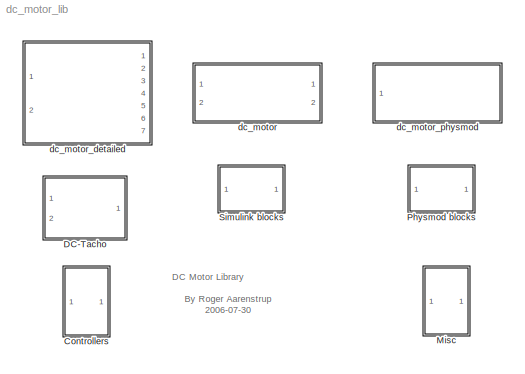
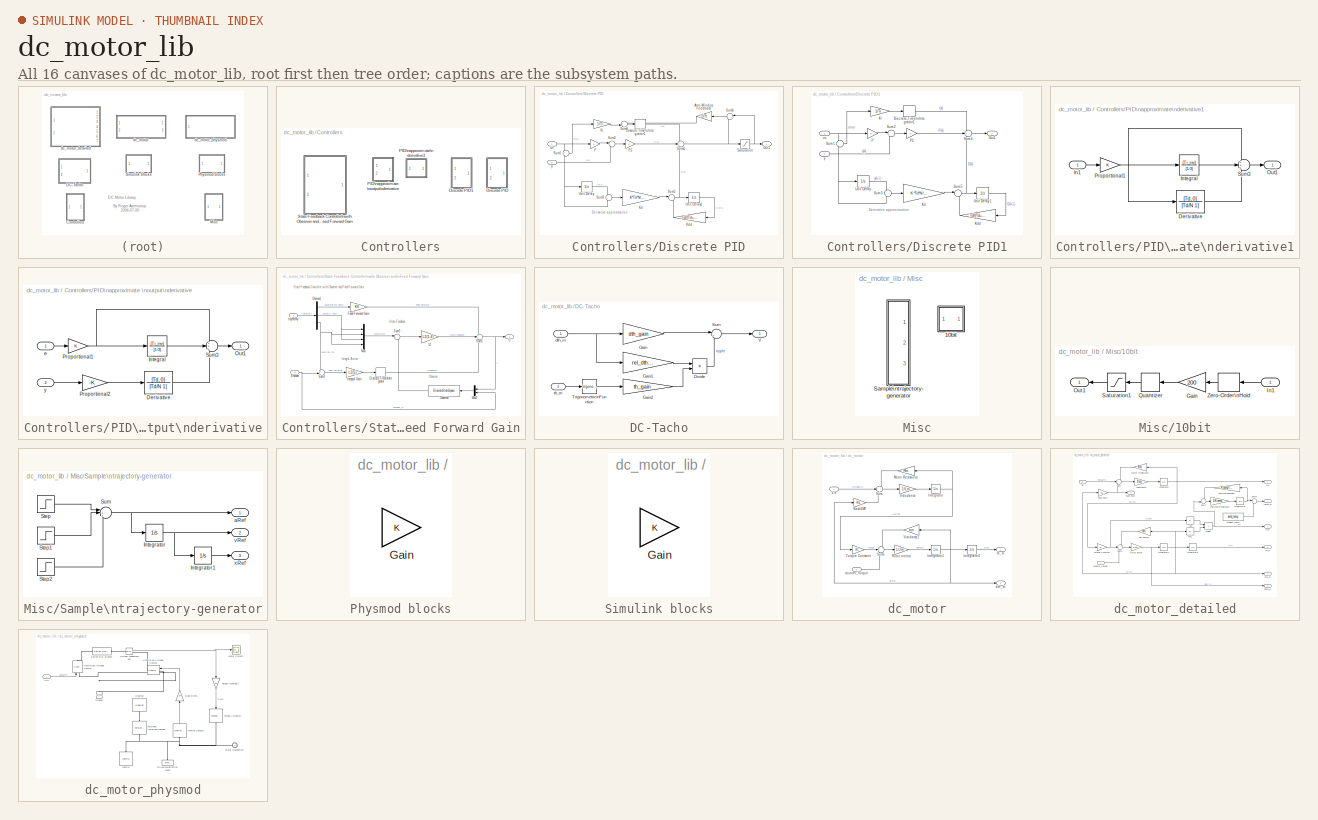
[diagram: thumbnail index - all 16 canvases of the model, root first then tree order]
MODEL dc_motor_lib
KIND library
BLOCK [SubSystem] Controllers
  Ports = []
  RequestExecContextInheritance = off
  SID = 1
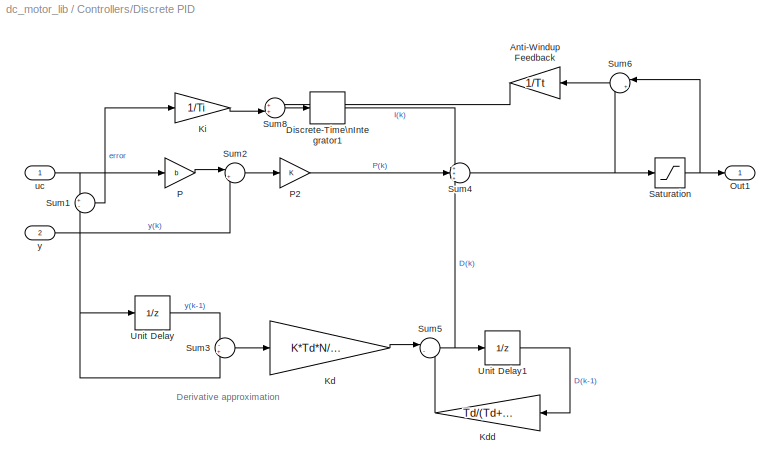
BLOCK [SubSystem] Controllers/Discrete PID
  Ports = [2, 1]
  RequestExecContextInheritance = off
  SID = 2
BLOCK [Gain] Controllers/Discrete PID/Anti-Windup Feedback
  Gain = 1/Tt
  SID = 5
  SampleTime = Ts
BLOCK [DiscreteIntegrator] Controllers/Discrete PID/Discrete-Time\nIntegrator1
  ICPrevOutput = DiscIntNeverNeededParam
  ICPrevScaledInput = DiscIntNeverNeededParam
  Ports = [1, 1]
  SID = 6
  SampleTime = Ts
  gainval = K
BLOCK [Gain] Controllers/Discrete PID/Kd
  Gain = K*Td*N/(Td+N*Ts)
  SID = 7
  SampleTime = Ts
BLOCK [Gain] Controllers/Discrete PID/Kdd
  Gain = Td/(Td+N*Ts)
  SID = 8
  SampleTime = Ts
BLOCK [Gain] Controllers/Discrete PID/Ki
  Gain = 1/Ti
  SID = 9
  SampleTime = Ts
BLOCK [Outport] Controllers/Discrete PID/Out1
  SID = 22
BLOCK [Gain] Controllers/Discrete PID/P
  Gain = b
  SID = 10
  SampleTime = Ts
BLOCK [Gain] Controllers/Discrete PID/P2
  Gain = K
  SID = 11
  SampleTime = Ts
BLOCK [Saturate] Controllers/Discrete PID/Saturation
  LowerLimit = Umin
  SID = 12
  SampleTime = Ts
  UpperLimit = Umax
BLOCK [Sum] Controllers/Discrete PID/Sum1
  Inputs = +-
  Ports = [2, 1]
  SID = 13
BLOCK [Sum] Controllers/Discrete PID/Sum2
  Inputs = |+-
  Ports = [2, 1]
  SID = 14
BLOCK [Sum] Controllers/Discrete PID/Sum3
  Inputs = -+
  Ports = [2, 1]
  SID = 15
BLOCK [Sum] Controllers/Discrete PID/Sum4
  Inputs = +++
  Ports = [3, 1]
  SID = 16
BLOCK [Sum] Controllers/Discrete PID/Sum5
  Inputs = |-+
  Ports = [2, 1]
  SID = 17
BLOCK [Sum] Controllers/Discrete PID/Sum6
  Inputs = |+-
  Ports = [2, 1]
  SID = 18
BLOCK [Sum] Controllers/Discrete PID/Sum8
  Inputs = ++|
  Ports = [2, 1]
  SID = 19
BLOCK [UnitDelay] Controllers/Discrete PID/Unit Delay
  SID = 20
  SampleTime = Ts
BLOCK [UnitDelay] Controllers/Discrete PID/Unit Delay1
  SID = 21
  SampleTime = Ts
BLOCK [Inport] Controllers/Discrete PID/uc
  SID = 3
BLOCK [Inport] Controllers/Discrete PID/y
  Port = 2
  SID = 4
BLOCK [SubSystem] Controllers/Discrete PID1
  Ports = [2, 1]
  RequestExecContextInheritance = off
  SID = 24
BLOCK [DiscreteIntegrator] Controllers/Discrete PID1/Discrete-Time\nIntegrator1
  ICPrevOutput = DiscIntNeverNeededParam
  ICPrevScaledInput = DiscIntNeverNeededParam
  Ports = [1, 1]
  SID = 27
  SampleTime = Ts
  gainval = K
BLOCK [Gain] Controllers/Discrete PID1/Kd
  Gain = K*Td*N/(Td+N*Ts)
  SID = 28
BLOCK [Gain] Controllers/Discrete PID1/Kdd
  Gain = Td/(Td+N*Ts)
  SID = 29
BLOCK [Gain] Controllers/Discrete PID1/Ki
  Gain = 1/Ti
  SID = 30
BLOCK [Outport] Controllers/Discrete PID1/Out1
  SID = 40
BLOCK [Gain] Controllers/Discrete PID1/P
  Gain = b
  SID = 31
BLOCK [Gain] Controllers/Discrete PID1/P2
  Gain = K
  SID = 32
BLOCK [Sum] Controllers/Discrete PID1/Sum1
  Inputs = +-
  Ports = [2, 1]
  SID = 33
BLOCK [Sum] Controllers/Discrete PID1/Sum2
  Inputs = |+-
  Ports = [2, 1]
  SID = 34
BLOCK [Sum] Controllers/Discrete PID1/Sum3
  Inputs = -+
  Ports = [2, 1]
  SID = 35
BLOCK [Sum] Controllers/Discrete PID1/Sum4
  Inputs = +++
  Ports = [3, 1]
  SID = 36
BLOCK [Sum] Controllers/Discrete PID1/Sum5
  Inputs = |-+
  Ports = [2, 1]
  SID = 37
BLOCK [UnitDelay] Controllers/Discrete PID1/Unit Delay
  SID = 38
  SampleTime = Ts
BLOCK [UnitDelay] Controllers/Discrete PID1/Unit Delay1
  SID = 39
  SampleTime = Ts
BLOCK [Inport] Controllers/Discrete PID1/uc
  SID = 25
BLOCK [Inport] Controllers/Discrete PID1/y
  Port = 2
  SID = 26
BLOCK [SubSystem] Controllers/PID\napproximate \noutput\nderivative
  Ports = [2, 1]
  RequestExecContextInheritance = off
  SID = 49
BLOCK [TransferFcn] Controllers/PID\napproximate \noutput\nderivative/Derivative
  Denominator = [Td/N 1]
  Numerator = [Td, 0]
  SID = 52
BLOCK [TransferFcn] Controllers/PID\napproximate \noutput\nderivative/Integral
  Denominator = [1 0]
  Numerator = [Ti_inv]
  SID = 53
BLOCK [Outport] Controllers/PID\napproximate \noutput\nderivative/Out1
  SID = 57
BLOCK [Gain] Controllers/PID\napproximate \noutput\nderivative/Proportional1
  Gain = K
  OutDataTypeStr = Inherit: Same as input
  ParamDataTypeStr = Inherit: Same as input
  SID = 54
  SaturateOnIntegerOverflow = on
BLOCK [Gain] Controllers/PID\napproximate \noutput\nderivative/Proportional2
  Gain = -K
  OutDataTypeStr = Inherit: Same as input
  ParamDataTypeStr = Inherit: Same as input
  SID = 55
  SaturateOnIntegerOverflow = on
BLOCK [Sum] Controllers/PID\napproximate \noutput\nderivative/Sum3
  Inputs = +++
  Ports = [3, 1]
  SID = 56
BLOCK [Inport] Controllers/PID\napproximate \noutput\nderivative/e
  SID = 50
BLOCK [Inport] Controllers/PID\napproximate \noutput\nderivative/y
  Port = 2
  SID = 51
BLOCK [SubSystem] Controllers/PID\napproximate\nderivative1
  Ports = [1, 1]
  RequestExecContextInheritance = off
  SID = 42
BLOCK [TransferFcn] Controllers/PID\napproximate\nderivative1/Derivative
  Denominator = [Td/N 1]
  Numerator = [Td, 0]
  SID = 44
BLOCK [Inport] Controllers/PID\napproximate\nderivative1/In1
  SID = 43
BLOCK [TransferFcn] Controllers/PID\napproximate\nderivative1/Integral
  Denominator = [1 0]
  Numerator = [Ti_inv]
  SID = 45
BLOCK [Outport] Controllers/PID\napproximate\nderivative1/Out1
  SID = 48
BLOCK [Gain] Controllers/PID\napproximate\nderivative1/Proportional1
  Gain = K
  OutDataTypeStr = Inherit: Same as input
  ParamDataTypeStr = Inherit: Same as input
  SID = 46
  SaturateOnIntegerOverflow = on
BLOCK [Sum] Controllers/PID\napproximate\nderivative1/Sum3
  Inputs = +++
  Ports = [3, 1]
  SID = 47
BLOCK [SubSystem] Controllers/State Feedback Controller\nwith Observer and\nFeed Forward Gain
  Ports = [2, 1]
  RequestExecContextInheritance = off
  SID = 58
BLOCK [Demux] Controllers/State Feedback Controller\nwith Observer and\nFeed Forward Gain/Demux1
  Outputs = 3
  Ports = [1, 3]
  SID = 61
BLOCK [DiscreteIntegrator] Controllers/State Feedback Controller\nwith Observer and\nFeed Forward Gain/Discrete-Time\nIntegrator
  ICPrevOutput = DiscIntNeverNeededParam
  ICPrevScaledInput = DiscIntNeverNeededParam
  Ports = [1, 1]
  SID = 62
  SampleTime = Ts
  gainval = 1
BLOCK [Inport] Controllers/State Feedback Controller\nwith Observer and\nFeed Forward Gain/Encoder
  Port = 2
  SID = 60
BLOCK [Gain] Controllers/State Feedback Controller\nwith Observer and\nFeed Forward Gain/Feed Forward Gain
  Gain = Kff
  SID = 63
  SampleTime = Ts
BLOCK [Gain] Controllers/State Feedback Controller\nwith Observer and\nFeed Forward Gain/Integral Gain
  Gain = L2(5)
  SID = 64
  SampleTime = Ts
BLOCK [Gain] Controllers/State Feedback Controller\nwith Observer and\nFeed Forward Gain/L2
  Gain = L2(1:4)
  Multiplication = Matrix(K*u) (u vector)
  SID = 65
  SampleTime = Ts
BLOCK [Mux] Controllers/State Feedback Controller\nwith Observer and\nFeed Forward Gain/Mux
  DisplayOption = bar
  Ports = [4, 1]
  SID = 66
BLOCK [Mux] Controllers/State Feedback Controller\nwith Observer and\nFeed Forward Gain/Mux2
  DisplayOption = bar
  Inputs = 2
  Ports = [2, 1]
  SID = 67
BLOCK [DiscreteStateSpace] Controllers/State Feedback Controller\nwith Observer and\nFeed Forward Gain/Observer
  A = Aobs
  B = Bobs
  C = Cobs
  D = Dobs
  SID = 68
  SampleTime = Ts
BLOCK [Sum] Controllers/State Feedback Controller\nwith Observer and\nFeed Forward Gain/Sum1
  Inputs = +++
  Ports = [3, 1]
  SID = 69
BLOCK [Sum] Controllers/State Feedback Controller\nwith Observer and\nFeed Forward Gain/Sum2
  Inputs = +-|
  Ports = [2, 1]
  SID = 70
BLOCK [Sum] Controllers/State Feedback Controller\nwith Observer and\nFeed Forward Gain/Sum3
  Inputs = |+-
  Ports = [2, 1]
  SID = 71
BLOCK [Outport] Controllers/State Feedback Controller\nwith Observer and\nFeed Forward Gain/U
  SID = 72
BLOCK [Inport] Controllers/State Feedback Controller\nwith Observer and\nFeed Forward Gain/trajectory
  SID = 59
BLOCK [SubSystem] DC-Tacho
  Ports = [2, 1]
  RequestExecContextInheritance = off
  SID = 77
BLOCK [Product] DC-Tacho/Divide
  Inputs = **
  Ports = [2, 1]
  SID = 80
BLOCK [Gain] DC-Tacho/Gain
  Gain = dth_gain
  SID = 81
BLOCK [Gain] DC-Tacho/Gain1
  Gain = rel_dth_gain
  SID = 82
BLOCK [Gain] DC-Tacho/Gain2
  Gain = th_gain
  SID = 83
BLOCK [Sum] DC-Tacho/Sum
  Inputs = |++
  Ports = [2, 1]
  SID = 84
BLOCK [Trigonometry] DC-Tacho/Trigonometric\nFunction
  Ports = [1, 1]
  SID = 85
BLOCK [Outport] DC-Tacho/V
  SID = 86
BLOCK [Inport] DC-Tacho/dth_m
  SID = 78
BLOCK [Inport] DC-Tacho/th_m
  Port = 2
  SID = 79
BLOCK [SubSystem] Misc
  Ports = []
  RequestExecContextInheritance = off
  SID = 87
BLOCK [SubSystem] Misc/10bit
  Ports = [1, 1]
  RequestExecContextInheritance = off
  SID = 88
BLOCK [Gain] Misc/10bit/Gain
  Gain = 200
  SID = 90
BLOCK [Inport] Misc/10bit/In1
  SID = 89
BLOCK [Outport] Misc/10bit/Out1
  SID = 94
BLOCK [Quantizer] Misc/10bit/Quantizer
  QuantizationInterval = 1
  SID = 91
  SampleTime = Ts
BLOCK [Saturate] Misc/10bit/Saturation1
  LowerLimit = -512
  SID = 92
  SampleTime = Ts
  UpperLimit = 512
BLOCK [ZeroOrderHold] Misc/10bit/Zero-Order\nHold
  SID = 93
  SampleTime = Ts
BLOCK [SubSystem] Misc/Sample\ntrajectory-generator
  Ports = [0, 3]
  RequestExecContextInheritance = off
  SID = 95
BLOCK [Integrator] Misc/Sample\ntrajectory-generator/Integrator
  Ports = [1, 1]
  SID = 96
BLOCK [Integrator] Misc/Sample\ntrajectory-generator/Integrator1
  Ports = [1, 1]
  SID = 97
BLOCK [Step] Misc/Sample\ntrajectory-generator/Step
  After = aMax
  SID = 98
  SampleTime = 0
  Time = 0
BLOCK [Step] Misc/Sample\ntrajectory-generator/Step1
  After = -2*aMax
  SID = 99
  SampleTime = 0
  Time = tMove/2
BLOCK [Step] Misc/Sample\ntrajectory-generator/Step2
  After = aMax
  SID = 100
  SampleTime = 0
  Time = 2*tMove/2
BLOCK [Sum] Misc/Sample\ntrajectory-generator/Sum
  InputSameDT = on
  Inputs = |+++
  OutDataTypeStr = Inherit: Same as first input
  Ports = [3, 1]
  SID = 101
  SaturateOnIntegerOverflow = on
BLOCK [Outport] Misc/Sample\ntrajectory-generator/aRef
  SID = 102
BLOCK [Outport] Misc/Sample\ntrajectory-generator/vRef
  Port = 2
  SID = 103
BLOCK [Outport] Misc/Sample\ntrajectory-generator/xRef
  Port = 3
  SID = 104
BLOCK [SubSystem] Physmod blocks
  OpenFcn = sample_physmod_load
  Ports = []
  RequestExecContextInheritance = off
  SID = 105
BLOCK [Gain] Physmod blocks/Gain
  SID = 106
BLOCK [SubSystem] Simulink blocks
  OpenFcn = sample_load
  Ports = []
  RequestExecContextInheritance = off
  SID = 107
BLOCK [Gain] Simulink blocks/Gain
  SID = 108
BLOCK [SubSystem] dc_motor
  Ports = [2, 2]
  RequestExecContextInheritance = off
  SID = 109
BLOCK [Gain] dc_motor/Back EMF
  Gain = Kb
  SID = 112
BLOCK [Gain] dc_motor/Inductance
  Gain = 1/Lm
  SID = 113
BLOCK [Integrator] dc_motor/Integrator
  Ports = [1, 1]
  SID = 114
BLOCK [Integrator] dc_motor/Integrator1
  Ports = [1, 1]
  SID = 115
BLOCK [Integrator] dc_motor/Integrator2
  Ports = [1, 1]
  SID = 116
BLOCK [Gain] dc_motor/Motor Resistance
  Gain = Rm
  SID = 117
BLOCK [Gain] dc_motor/Rotor inertia
  Gain = 1/Jm
  SID = 118
BLOCK [Sum] dc_motor/Sum
  Inputs = -+-
  Ports = [3, 1]
  SID = 119
BLOCK [Sum] dc_motor/Sum1
  Inputs = -+-
  Ports = [3, 1]
  SID = 120
BLOCK [Gain] dc_motor/Torque Constant
  Gain = Kt
  SID = 121
BLOCK [Inport] dc_motor/Vin
  SID = 110
BLOCK [Gain] dc_motor/Visc damp1
  Gain = bm
  SID = 122
BLOCK [Inport] dc_motor/counter_torque
  Port = 2
  SID = 111
BLOCK [Outport] dc_motor/dth_m
  SID = 123
BLOCK [Outport] dc_motor/th_m
  Port = 2
  SID = 124
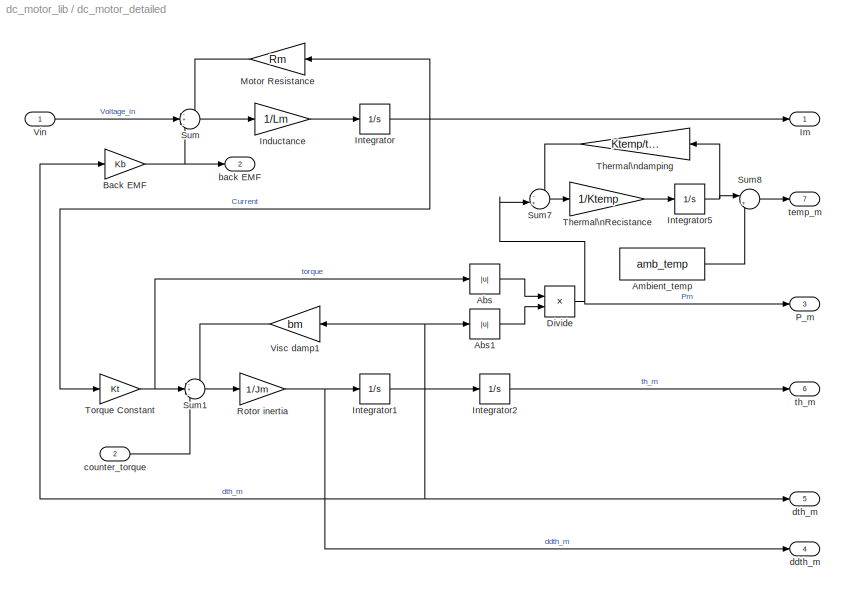
BLOCK [SubSystem] dc_motor_detailed
  Ports = [2, 7]
  RequestExecContextInheritance = off
  SID = 125
BLOCK [Abs] dc_motor_detailed/Abs
  SID = 128
  SaturateOnIntegerOverflow = off
BLOCK [Abs] dc_motor_detailed/Abs1
  SID = 129
  SaturateOnIntegerOverflow = off
BLOCK [Constant] dc_motor_detailed/Ambient_temp
  SID = 130
  SampleTime = 0
  Value = amb_temp
BLOCK [Gain] dc_motor_detailed/Back EMF
  Gain = Kb
  SID = 131
BLOCK [Product] dc_motor_detailed/Divide
  Inputs = **
  Ports = [2, 1]
  SID = 132
BLOCK [Outport] dc_motor_detailed/Im
  SID = 148
BLOCK [Gain] dc_motor_detailed/Inductance
  Gain = 1/Lm
  SID = 133
BLOCK [Integrator] dc_motor_detailed/Integrator
  Ports = [1, 1]
  SID = 134
BLOCK [Integrator] dc_motor_detailed/Integrator1
  Ports = [1, 1]
  SID = 135
BLOCK [Integrator] dc_motor_detailed/Integrator2
  Ports = [1, 1]
  SID = 136
BLOCK [Integrator] dc_motor_detailed/Integrator5
  Ports = [1, 1]
  SID = 137
BLOCK [Gain] dc_motor_detailed/Motor Resistance
  Gain = Rm
  SID = 138
BLOCK [Outport] dc_motor_detailed/P_m
  Port = 3
  SID = 150
BLOCK [Gain] dc_motor_detailed/Rotor inertia
  Gain = 1/Jm
  SID = 139
BLOCK [Sum] dc_motor_detailed/Sum
  Inputs = -+-
  Ports = [3, 1]
  SID = 140
BLOCK [Sum] dc_motor_detailed/Sum1
  Inputs = -+-
  Ports = [3, 1]
  SID = 141
BLOCK [Sum] dc_motor_detailed/Sum7
  Inputs = -+|
  Ports = [2, 1]
  SID = 142
BLOCK [Sum] dc_motor_detailed/Sum8
  Inputs = |++
  Ports = [2, 1]
  SID = 143
BLOCK [Gain] dc_motor_detailed/Thermal\nRecistance
  Gain = 1/Ktemp
  SID = 144
BLOCK [Gain] dc_motor_detailed/Thermal\ndamping
  Gain = Ktemp/ttemp
  SID = 145
BLOCK [Gain] dc_motor_detailed/Torque Constant
  Gain = Kt
  SID = 146
BLOCK [Inport] dc_motor_detailed/Vin
  SID = 126
BLOCK [Gain] dc_motor_detailed/Visc damp1
  Gain = bm
  SID = 147
BLOCK [Outport] dc_motor_detailed/back EMF
  Port = 2
  SID = 149
BLOCK [Inport] dc_motor_detailed/counter_torque
  Port = 2
  SID = 127
BLOCK [Outport] dc_motor_detailed/ddth_m
  Port = 4
  SID = 151
BLOCK [Outport] dc_motor_detailed/dth_m
  Port = 5
  SID = 152
BLOCK [Outport] dc_motor_detailed/temp_m
  Port = 7
  SID = 154
BLOCK [Outport] dc_motor_detailed/th_m
  Port = 6
  SID = 153
BLOCK [SubSystem] dc_motor_physmod
  Ports = [1, 0, 0, 0, 0, 0, 1]
  RequestExecContextInheritance = off
  SID = 155
BLOCK [Gain] dc_motor_physmod/Back EMF1
  Gain = Kb
  NameLocation = right
  SID = 157
BLOCK [Reference] dc_motor_physmod/Controlled Voltage Source  REF=powerlib/Electrical\nSources/Controlled Voltage Source
  Amplitude = 0
  Frequency = 0
  FunctionWithSeparateData = off
  Initialize = on
  Measurements = None
  NameLocation = right
  Phase = 0
  Ports = [1, 0, 0, 0, 0, 1, 1]
  RTWMemSecDataConstants = Inherit from model
  RTWMemSecDataInternal = Inherit from model
  RTWMemSecDataParameters = Inherit from model
  RTWMemSecFuncExecute = Inherit from model
  RTWMemSecFuncInitTerm = Inherit from model
  SID = 158
  ShowPortLabels = on
  SourceBlock = powerlib/Electrical\nSources/Controlled Voltage Source
  SourceProductBaseCode = PS
  SourceType = Controlled Voltage Source
  Source_Type = AC
  SystemSampleTime = -1
BLOCK [Reference] dc_motor_physmod/Controlled Voltage Source1  REF=powerlib/Electrical\nSources/Controlled Voltage Source
  Amplitude = 0
  Frequency = 0
  FunctionWithSeparateData = off
  Initialize = off
  Measurements = None
  Phase = 0
  Ports = [1, 0, 0, 0, 0, 1, 1]
  RTWMemSecDataConstants = Inherit from model
  RTWMemSecDataInternal = Inherit from model
  RTWMemSecDataParameters = Inherit from model
  RTWMemSecFuncExecute = Inherit from model
  RTWMemSecFuncInitTerm = Inherit from model
  SID = 159
  ShowPortLabels = on
  SourceBlock = powerlib/Electrical\nSources/Controlled Voltage Source
  SourceProductBaseCode = PS
  SourceType = Controlled Voltage Source
  Source_Type = DC
  SystemSampleTime = -1
BLOCK [Reference] dc_motor_physmod/Current Measurement  REF=powerlib/Measurements/Current Measurement
  FunctionWithSeparateData = off
  OutputType = Complex
  PSBequivalent = 0
  PhasorSimulation = off
  Ports = [0, 1, 0, 0, 0, 1, 1]
  RTWMemSecDataConstants = Inherit from model
  RTWMemSecDataInternal = Inherit from model
  RTWMemSecDataParameters = Inherit from model
  RTWMemSecFuncExecute = Inherit from model
  RTWMemSecFuncInitTerm = Inherit from model
  SID = 160
  ShowPortLabels = on
  SourceBlock = powerlib/Measurements/Current Measurement
  SourceProductBaseCode = PS
  SourceType = Current Measurement
  SystemSampleTime = -1
BLOCK [Reference] dc_motor_physmod/Driveline\nEnvironment  REF=driveline/Solver &\nInertias/Driveline\nEnvironment  (lib defined in slx_0115b7ecc7e4, slx_0630d05a24ab, +7 more)
  BlockClass = Solver
  DefaultClutchVelocityTolerance = 1e-3
  DefaultUseAutoClutchVelocityTolerance = on
  FunctionWithSeparateData = off
  ModeIteration = on
  NameLocation = right
  PhysicalDomain = driveline_domain
  PortType = p1
  Ports = [0, 0, 0, 0, 0, 1]
  RTWMemSecDataConstants = Inherit from model
  RTWMemSecDataInternal = Inherit from model
  RTWMemSecDataParameters = Inherit from model
  RTWMemSecFuncExecute = Inherit from model
  RTWMemSecFuncInitTerm = Inherit from model
  SID = 161
  ShowPortLabels = off
  SourceBlock = driveline/Solver &\nInertias/Driveline\nEnvironment
  SourceProductBaseCode = LD
  SourceType = Driveline Environment
  SystemSampleTime = -1
BLOCK [Reference] dc_motor_physmod/Ground  REF=powerlib/Elements/Ground
  LConnTagsString = a
  LeftPortType = p1
  NameLocation = right
  PhysicalDomain = powersysdomain
  Ports = [0, 0, 0, 0, 0, 1]
  RightPortType = p1
  SID = 162
  SourceBlock = powerlib/Elements/Ground
  SourceProductBaseCode = PS
  SourceType = Ground
  SubClassName = unknown
BLOCK [Reference] dc_motor_physmod/Housing  REF=driveline/Solver &\nInertias/Housing  (lib defined in slx_0115b7ecc7e4, slx_0630d05a24ab, +7 more)
  FunctionWithSeparateData = off
  NameLocation = left
  Ports = [0, 0, 0, 0, 0, 0, 1]
  RTWMemSecDataConstants = Inherit from model
  RTWMemSecDataInternal = Inherit from model
  RTWMemSecDataParameters = Inherit from model
  RTWMemSecFuncExecute = Inherit from model
  RTWMemSecFuncInitTerm = Inherit from model
  SID = 163
  ShowPortLabels = on
  SourceBlock = driveline/Solver &\nInertias/Housing
  SourceProductBaseCode = LD
  SourceType = Housing
  SystemSampleTime = -1
BLOCK [Reference] dc_motor_physmod/Inertia  REF=driveline/Solver &\nInertias/Inertia  (lib defined in slx_0115b7ecc7e4, slx_0630d05a24ab, +7 more)
  BlockClass = Inertia
  FunctionWithSeparateData = off
  I = Jm
  Ip = []
  Iv = []
  NameLocation = right
  PhysicalDomain = driveline_domain
  PortType = p1
  Ports = [0, 0, 0, 0, 0, 0, 1]
  RTWMemSecDataConstants = Inherit from model
  RTWMemSecDataInternal = Inherit from model
  RTWMemSecDataParameters = Inherit from model
  RTWMemSecFuncExecute = Inherit from model
  RTWMemSecFuncInitTerm = Inherit from model
  SID = 164
  ShowLeft = off
  ShowPortLabels = on
  ShowRight = on
  SourceBlock = driveline/Solver &\nInertias/Inertia
  SourceProductBaseCode = LD
  SourceType = Inertia
  SystemSampleTime = -1
BLOCK [Reference] dc_motor_physmod/Motion Sensor1  REF=driveline/Sensors &\nActuators/Motion Sensor  (lib defined in slx_0115b7ecc7e4, slx_0630d05a24ab, +7 more)
  Acceleration = off
  Angle = off
  FunctionWithSeparateData = off
  NameLocation = right
  Ports = [0, 1, 0, 0, 0, 1]
  RTWMemSecDataConstants = Inherit from model
  RTWMemSecDataInternal = Inherit from model
  RTWMemSecDataParameters = Inherit from model
  RTWMemSecFuncExecute = Inherit from model
  RTWMemSecFuncInitTerm = Inherit from model
  SID = 165
  ShowPortLabels = on
  SourceBlock = driveline/Sensors &\nActuators/Motion Sensor
  SourceProductBaseCode = LD
  SourceType = Motion Sensor
  SystemSampleTime = -1
  Velocity = on
  x0 = 0
BLOCK [Scope] dc_motor_physmod/Motor Curent1
  Floating = off
  NumInputPorts = 1
  Ports = [1]
  SID = 166
  ScopeSpecificationString = C++SS(StrPVP('Location','[86, 72, 410, 311]'),StrPVP('Open','off'),MxPVP('AxesTitles',54,'struct(''axes1'',''%<SignalLabel>'')'),StrPVP('SaveName','ScopeData2'),StrPVP('DataFormat','StructureWithTime'),StrPVP('LimitDataPoints','off'),StrPVP('BlockParamSampleTime','0'),StrPVP('Decimation','1'),StrPVP('BlockParamSampleInput','off'))
BLOCK [PMIOPort] dc_motor_physmod/Rotor Connection
  SID = 171
  Side = Right
BLOCK [Reference] dc_motor_physmod/Series RLC Branch  REF=powerlib/Elements/Series RLC Branch
  BranchType = RL
  Capacitance = 1.0
  Inductance = Lm
  InitialCurrent = 0
  InitialVoltage = 0
  LConnTagsString = __new0
  LeftPortType = p1
  Measurements = None
  PhysicalDomain = powersysdomain
  Ports = [0, 0, 0, 0, 0, 1, 1]
  RConnTagsString = __new0
  Resistance = Rm
  RightPortType = p1
  SID = 167
  SetiL0 = off
  Setx0 = off
  SourceBlock = powerlib/Elements/Series RLC Branch
  SourceProductBaseCode = PS
  SourceType = Series RLC Branch
  SubClassName = unknown
BLOCK [Reference] dc_motor_physmod/Torque Actuator1  REF=driveline/Sensors &\nActuators/Torque Actuator  (lib defined in slx_0115b7ecc7e4, slx_0630d05a24ab, +7 more)
  FunctionWithSeparateData = off
  NameLocation = left
  Ports = [1, 0, 0, 0, 0, 0, 1]
  RTWMemSecDataConstants = Inherit from model
  RTWMemSecDataInternal = Inherit from model
  RTWMemSecDataParameters = Inherit from model
  RTWMemSecFuncExecute = Inherit from model
  RTWMemSecFuncInitTerm = Inherit from model
  SID = 168
  ShowPortLabels = on
  SourceBlock = driveline/Sensors &\nActuators/Torque Actuator
  SourceProductBaseCode = LD
  SourceType = Torque Actuator
  SystemSampleTime = -1
BLOCK [Gain] dc_motor_physmod/Torque Constant1
  Gain = Kt
  NameLocation = left
  SID = 169
BLOCK [Reference] dc_motor_physmod/Torsional \nSpring-Damper  REF=driveline/Dynamic\nElements/Torsional \nSpring-Damper  (lib defined in slx_0115b7ecc7e4, slx_0630d05a24ab, +7 more)
  Backlash = 0
  FunctionWithSeparateData = off
  NameLocation = right
  Ports = [0, 0, 0, 0, 0, 1, 1]
  RTWMemSecDataConstants = Inherit from model
  RTWMemSecDataInternal = Inherit from model
  RTWMemSecDataParameters = Inherit from model
  RTWMemSecFuncExecute = Inherit from model
  RTWMemSecFuncInitTerm = Inherit from model
  SID = 170
  ShowPortLabels = on
  SourceBlock = driveline/Dynamic\nElements/Torsional \nSpring-Damper
  SourceProductBaseCode = LD
  SourceType = Torsional Spring-Damper
  SystemSampleTime = -1
  c = bm
  k = 0
  x0 = 0
BLOCK [Inport] dc_motor_physmod/Vin
  SID = 156
ANNOTATION (root): By Roger Aarenstrup\n2006-07-30
ANNOTATION (root): DC Motor Library
ANNOTATION Controllers/Discrete PID: Derivative approximation
ANNOTATION Controllers/Discrete PID1: Derivative approximation
ANNOTATION Controllers/State Feedback Controller\nwith Observer and\nFeed Forward Gain: Integral Action
ANNOTATION Controllers/State Feedback Controller\nwith Observer and\nFeed Forward Gain: Observer
ANNOTATION Controllers/State Feedback Controller\nwith Observer and\nFeed Forward Gain: State Feedback
ANNOTATION Controllers/State Feedback Controller\nwith Observer and\nFeed Forward Gain: State Feedback Controller with Observer and Feed Forward Gain
LINE Controllers/Discrete PID/Anti-Windup Feedback:1 -> Controllers/Discrete PID/Sum8:1
LINE Controllers/Discrete PID/Discrete-Time\nIntegrator1:1 -> Controllers/Discrete PID/Sum4:1
LINE Controllers/Discrete PID/Kd:1 -> Controllers/Discrete PID/Sum5:1
LINE Controllers/Discrete PID/Kdd:1 -> Controllers/Discrete PID/Sum5:2
LINE Controllers/Discrete PID/Ki:1 -> Controllers/Discrete PID/Sum8:2
LINE Controllers/Discrete PID/P2:1 -> Controllers/Discrete PID/Sum4:2
LINE Controllers/Discrete PID/P:1 -> Controllers/Discrete PID/Sum2:1
NET Controllers/Discrete PID/Saturation:1 -> Controllers/Discrete PID/Out1:1, Controllers/Discrete PID/Sum6:1
LINE Controllers/Discrete PID/Sum1:1 -> Controllers/Discrete PID/Ki:1
LINE Controllers/Discrete PID/Sum2:1 -> Controllers/Discrete PID/P2:1
LINE Controllers/Discrete PID/Sum3:1 -> Controllers/Discrete PID/Kd:1
NET Controllers/Discrete PID/Sum4:1 -> Controllers/Discrete PID/Saturation:1, Controllers/Discrete PID/Sum6:2
NET Controllers/Discrete PID/Sum5:1 -> Controllers/Discrete PID/Sum4:3, Controllers/Discrete PID/Unit Delay1:1
LINE Controllers/Discrete PID/Sum6:1 -> Controllers/Discrete PID/Anti-Windup Feedback:1
LINE Controllers/Discrete PID/Sum8:1 -> Controllers/Discrete PID/Discrete-Time\nIntegrator1:1
LINE Controllers/Discrete PID/Unit Delay1:1 -> Controllers/Discrete PID/Kdd:1
LINE Controllers/Discrete PID/Unit Delay:1 -> Controllers/Discrete PID/Sum3:1
NET Controllers/Discrete PID/uc:1 -> Controllers/Discrete PID/P:1, Controllers/Discrete PID/Sum1:1
NET Controllers/Discrete PID/y:1 -> Controllers/Discrete PID/Sum1:2, Controllers/Discrete PID/Sum2:2, Controllers/Discrete PID/Sum3:2, Controllers/Discrete PID/Unit Delay:1
LINE Controllers/Discrete PID1/Discrete-Time\nIntegrator1:1 -> Controllers/Discrete PID1/Sum4:1
LINE Controllers/Discrete PID1/Kd:1 -> Controllers/Discrete PID1/Sum5:1
LINE Controllers/Discrete PID1/Kdd:1 -> Controllers/Discrete PID1/Sum5:2
LINE Controllers/Discrete PID1/Ki:1 -> Controllers/Discrete PID1/Discrete-Time\nIntegrator1:1
LINE Controllers/Discrete PID1/P2:1 -> Controllers/Discrete PID1/Sum4:2
LINE Controllers/Discrete PID1/P:1 -> Controllers/Discrete PID1/Sum2:1
LINE Controllers/Discrete PID1/Sum1:1 -> Controllers/Discrete PID1/Ki:1
LINE Controllers/Discrete PID1/Sum2:1 -> Controllers/Discrete PID1/P2:1
LINE Controllers/Discrete PID1/Sum3:1 -> Controllers/Discrete PID1/Kd:1
LINE Controllers/Discrete PID1/Sum4:1 -> Controllers/Discrete PID1/Out1:1
NET Controllers/Discrete PID1/Sum5:1 -> Controllers/Discrete PID1/Sum4:3, Controllers/Discrete PID1/Unit Delay1:1
LINE Controllers/Discrete PID1/Unit Delay1:1 -> Controllers/Discrete PID1/Kdd:1
LINE Controllers/Discrete PID1/Unit Delay:1 -> Controllers/Discrete PID1/Sum3:1
NET Controllers/Discrete PID1/uc:1 -> Controllers/Discrete PID1/P:1, Controllers/Discrete PID1/Sum1:1
NET Controllers/Discrete PID1/y:1 -> Controllers/Discrete PID1/Sum1:2, Controllers/Discrete PID1/Sum2:2, Controllers/Discrete PID1/Sum3:2, Controllers/Discrete PID1/Unit Delay:1
LINE Controllers/PID\napproximate \noutput\nderivative/Derivative:1 -> Controllers/PID\napproximate \noutput\nderivative/Sum3:3
LINE Controllers/PID\napproximate \noutput\nderivative/Integral:1 -> Controllers/PID\napproximate \noutput\nderivative/Sum3:2
NET Controllers/PID\napproximate \noutput\nderivative/Proportional1:1 -> Controllers/PID\napproximate \noutput\nderivative/Integral:1, Controllers/PID\napproximate \noutput\nderivative/Sum3:1
LINE Controllers/PID\napproximate \noutput\nderivative/Proportional2:1 -> Controllers/PID\napproximate \noutput\nderivative/Derivative:1
LINE Controllers/PID\napproximate \noutput\nderivative/Sum3:1 -> Controllers/PID\napproximate \noutput\nderivative/Out1:1
LINE Controllers/PID\napproximate \noutput\nderivative/e:1 -> Controllers/PID\napproximate \noutput\nderivative/Proportional1:1
LINE Controllers/PID\napproximate \noutput\nderivative/y:1 -> Controllers/PID\napproximate \noutput\nderivative/Proportional2:1
LINE Controllers/PID\napproximate\nderivative1/Derivative:1 -> Controllers/PID\napproximate\nderivative1/Sum3:3
LINE Controllers/PID\napproximate\nderivative1/In1:1 -> Controllers/PID\napproximate\nderivative1/Proportional1:1
LINE Controllers/PID\napproximate\nderivative1/Integral:1 -> Controllers/PID\napproximate\nderivative1/Sum3:2
NET Controllers/PID\napproximate\nderivative1/Proportional1:1 -> Controllers/PID\napproximate\nderivative1/Derivative:1, Controllers/PID\napproximate\nderivative1/Integral:1, Controllers/PID\napproximate\nderivative1/Sum3:1
LINE Controllers/PID\napproximate\nderivative1/Sum3:1 -> Controllers/PID\napproximate\nderivative1/Out1:1
LINE Controllers/State Feedback Controller\nwith Observer and\nFeed Forward Gain/Demux1:1 -> Controllers/State Feedback Controller\nwith Observer and\nFeed Forward Gain/Feed Forward Gain:1
NET Controllers/State Feedback Controller\nwith Observer and\nFeed Forward Gain/Demux1:2 -> Controllers/State Feedback Controller\nwith Observer and\nFeed Forward Gain/Mux:1, Controllers/State Feedback Controller\nwith Observer and\nFeed Forward Gain/Mux:3
NET Controllers/State Feedback Controller\nwith Observer and\nFeed Forward Gain/Demux1:3 -> Controllers/State Feedback Controller\nwith Observer and\nFeed Forward Gain/Mux:2, Controllers/State Feedback Controller\nwith Observer and\nFeed Forward Gain/Mux:4, Controllers/State Feedback Controller\nwith Observer and\nFeed Forward Gain/Sum2:1
LINE Controllers/State Feedback Controller\nwith Observer and\nFeed Forward Gain/Discrete-Time\nIntegrator:1 -> Controllers/State Feedback Controller\nwith Observer and\nFeed Forward Gain/Sum1:3
NET Controllers/State Feedback Controller\nwith Observer and\nFeed Forward Gain/Encoder:1 -> Controllers/State Feedback Controller\nwith Observer and\nFeed Forward Gain/Mux2:2, Controllers/State Feedback Controller\nwith Observer and\nFeed Forward Gain/Sum2:2
LINE Controllers/State Feedback Controller\nwith Observer and\nFeed Forward Gain/Feed Forward Gain:1 -> Controllers/State Feedback Controller\nwith Observer and\nFeed Forward Gain/Sum1:1
LINE Controllers/State Feedback Controller\nwith Observer and\nFeed Forward Gain/Integral Gain:1 -> Controllers/State Feedback Controller\nwith Observer and\nFeed Forward Gain/Discrete-Time\nIntegrator:1
LINE Controllers/State Feedback Controller\nwith Observer and\nFeed Forward Gain/L2:1 -> Controllers/State Feedback Controller\nwith Observer and\nFeed Forward Gain/Sum1:2
LINE Controllers/State Feedback Controller\nwith Observer and\nFeed Forward Gain/Mux2:1 -> Controllers/State Feedback Controller\nwith Observer and\nFeed Forward Gain/Observer:1
LINE Controllers/State Feedback Controller\nwith Observer and\nFeed Forward Gain/Mux:1 -> Controllers/State Feedback Controller\nwith Observer and\nFeed Forward Gain/Sum3:1
LINE Controllers/State Feedback Controller\nwith Observer and\nFeed Forward Gain/Observer:1 -> Controllers/State Feedback Controller\nwith Observer and\nFeed Forward Gain/Sum3:2
NET Controllers/State Feedback Controller\nwith Observer and\nFeed Forward Gain/Sum1:1 -> Controllers/State Feedback Controller\nwith Observer and\nFeed Forward Gain/Mux2:1, Controllers/State Feedback Controller\nwith Observer and\nFeed Forward Gain/U:1
LINE Controllers/State Feedback Controller\nwith Observer and\nFeed Forward Gain/Sum2:1 -> Controllers/State Feedback Controller\nwith Observer and\nFeed Forward Gain/Integral Gain:1
LINE Controllers/State Feedback Controller\nwith Observer and\nFeed Forward Gain/Sum3:1 -> Controllers/State Feedback Controller\nwith Observer and\nFeed Forward Gain/L2:1
LINE Controllers/State Feedback Controller\nwith Observer and\nFeed Forward Gain/trajectory:1 -> Controllers/State Feedback Controller\nwith Observer and\nFeed Forward Gain/Demux1:1
LINE DC-Tacho/Divide:1 -> DC-Tacho/Sum:2
LINE DC-Tacho/Gain1:1 -> DC-Tacho/Divide:1
LINE DC-Tacho/Gain2:1 -> DC-Tacho/Divide:2
LINE DC-Tacho/Gain:1 -> DC-Tacho/Sum:1
LINE DC-Tacho/Sum:1 -> DC-Tacho/V:1
LINE DC-Tacho/Trigonometric\nFunction:1 -> DC-Tacho/Gain2:1
NET DC-Tacho/dth_m:1 -> DC-Tacho/Gain1:1, DC-Tacho/Gain:1
LINE DC-Tacho/th_m:1 -> DC-Tacho/Trigonometric\nFunction:1
LINE Misc/10bit/Gain:1 -> Misc/10bit/Quantizer:1
LINE Misc/10bit/In1:1 -> Misc/10bit/Zero-Order\nHold:1
LINE Misc/10bit/Quantizer:1 -> Misc/10bit/Saturation1:1
LINE Misc/10bit/Saturation1:1 -> Misc/10bit/Out1:1
LINE Misc/10bit/Zero-Order\nHold:1 -> Misc/10bit/Gain:1
LINE Misc/Sample\ntrajectory-generator/Integrator1:1 -> Misc/Sample\ntrajectory-generator/xRef:1
NET Misc/Sample\ntrajectory-generator/Integrator:1 -> Misc/Sample\ntrajectory-generator/Integrator1:1, Misc/Sample\ntrajectory-generator/vRef:1
LINE Misc/Sample\ntrajectory-generator/Step1:1 -> Misc/Sample\ntrajectory-generator/Sum:2
LINE Misc/Sample\ntrajectory-generator/Step2:1 -> Misc/Sample\ntrajectory-generator/Sum:3
LINE Misc/Sample\ntrajectory-generator/Step:1 -> Misc/Sample\ntrajectory-generator/Sum:1
NET Misc/Sample\ntrajectory-generator/Sum:1 -> Misc/Sample\ntrajectory-generator/Integrator:1, Misc/Sample\ntrajectory-generator/aRef:1
LINE dc_motor/Back EMF:1 -> dc_motor/Sum:3
LINE dc_motor/Inductance:1 -> dc_motor/Integrator:1
NET dc_motor/Integrator1:1 -> dc_motor/Back EMF:1, dc_motor/Integrator2:1, dc_motor/Visc damp1:1, dc_motor/dth_m:1
LINE dc_motor/Integrator2:1 -> dc_motor/th_m:1
NET dc_motor/Integrator:1 -> dc_motor/Motor Resistance:1, dc_motor/Torque Constant:1
LINE dc_motor/Motor Resistance:1 -> dc_motor/Sum:1
LINE dc_motor/Rotor inertia:1 -> dc_motor/Integrator1:1
LINE dc_motor/Sum1:1 -> dc_motor/Rotor inertia:1
LINE dc_motor/Sum:1 -> dc_motor/Inductance:1
LINE dc_motor/Torque Constant:1 -> dc_motor/Sum1:2
LINE dc_motor/Vin:1 -> dc_motor/Sum:2
LINE dc_motor/Visc damp1:1 -> dc_motor/Sum1:1
LINE dc_motor/counter_torque:1 -> dc_motor/Sum1:3
LINE dc_motor_detailed/Abs1:1 -> dc_motor_detailed/Divide:2
LINE dc_motor_detailed/Abs:1 -> dc_motor_detailed/Divide:1
LINE dc_motor_detailed/Ambient_temp:1 -> dc_motor_detailed/Sum8:2
NET dc_motor_detailed/Back EMF:1 -> dc_motor_detailed/Sum:3, dc_motor_detailed/back EMF:1
NET dc_motor_detailed/Divide:1 -> dc_motor_detailed/P_m:1, dc_motor_detailed/Sum7:2
LINE dc_motor_detailed/Inductance:1 -> dc_motor_detailed/Integrator:1
NET dc_motor_detailed/Integrator1:1 -> dc_motor_detailed/Abs1:1, dc_motor_detailed/Back EMF:1, dc_motor_detailed/Integrator2:1, dc_motor_detailed/Visc damp1:1, dc_motor_detailed/dth_m:1
LINE dc_motor_detailed/Integrator2:1 -> dc_motor_detailed/th_m:1
NET dc_motor_detailed/Integrator5:1 -> dc_motor_detailed/Sum8:1, dc_motor_detailed/Thermal\ndamping:1
NET dc_motor_detailed/Integrator:1 -> dc_motor_detailed/Im:1, dc_motor_detailed/Motor Resistance:1, dc_motor_detailed/Torque Constant:1
LINE dc_motor_detailed/Motor Resistance:1 -> dc_motor_detailed/Sum:1
NET dc_motor_detailed/Rotor inertia:1 -> dc_motor_detailed/Integrator1:1, dc_motor_detailed/ddth_m:1
LINE dc_motor_detailed/Sum1:1 -> dc_motor_detailed/Rotor inertia:1
LINE dc_motor_detailed/Sum7:1 -> dc_motor_detailed/Thermal\nRecistance:1
LINE dc_motor_detailed/Sum8:1 -> dc_motor_detailed/temp_m:1
LINE dc_motor_detailed/Sum:1 -> dc_motor_detailed/Inductance:1
LINE dc_motor_detailed/Thermal\nRecistance:1 -> dc_motor_detailed/Integrator5:1
LINE dc_motor_detailed/Thermal\ndamping:1 -> dc_motor_detailed/Sum7:1
NET dc_motor_detailed/Torque Constant:1 -> dc_motor_detailed/Abs:1, dc_motor_detailed/Sum1:2
LINE dc_motor_detailed/Vin:1 -> dc_motor_detailed/Sum:2
LINE dc_motor_detailed/Visc damp1:1 -> dc_motor_detailed/Sum1:1
LINE dc_motor_detailed/counter_torque:1 -> dc_motor_detailed/Sum1:3
LINE dc_motor_physmod/Back EMF1:1 -> dc_motor_physmod/Controlled Voltage Source1:1
NET dc_motor_physmod/Current Measurement:1 -> dc_motor_physmod/Motor Curent1:1, dc_motor_physmod/Torque Constant1:1
LINE dc_motor_physmod/Motion Sensor1:1 -> dc_motor_physmod/Back EMF1:1
LINE dc_motor_physmod/Torque Constant1:1 -> dc_motor_physmod/Torque Actuator1:1
LINE dc_motor_physmod/Vin:1 -> dc_motor_physmod/Controlled Voltage Source:1
PNET net1: dc_motor_physmod/Controlled Voltage Source1:LConn1 -- dc_motor_physmod/Controlled Voltage Source:LConn1 -- dc_motor_physmod/Ground:LConn1
PLINE dc_motor_physmod/Controlled Voltage Source1:RConn1 -- dc_motor_physmod/Current Measurement:RConn1
PLINE dc_motor_physmod/Controlled Voltage Source:RConn1 -- dc_motor_physmod/Series RLC Branch:LConn1
PLINE dc_motor_physmod/Current Measurement:LConn1 -- dc_motor_physmod/Series RLC Branch:RConn1
PNET net2: dc_motor_physmod/Driveline\nEnvironment:LConn1 -- dc_motor_physmod/Inertia:RConn1 -- dc_motor_physmod/Motion Sensor1:LConn1 -- dc_motor_physmod/Rotor Connection:RConn1 -- dc_motor_physmod/Torque Actuator1:RConn1 -- dc_motor_physmod/Torsional \nSpring-Damper:LConn1
PLINE dc_motor_physmod/Housing:RConn1 -- dc_motor_physmod/Torsional \nSpring-Damper:RConn1
note: NET lines group one-source signal fan-out (src -> all destinations, sorted); 1:1 wires keep LINE; PNET lines group multi-terminal physical nets as a canonical sorted terminal list (undirected conserving connections); 2-terminal nets keep the pairwise PLINE form
